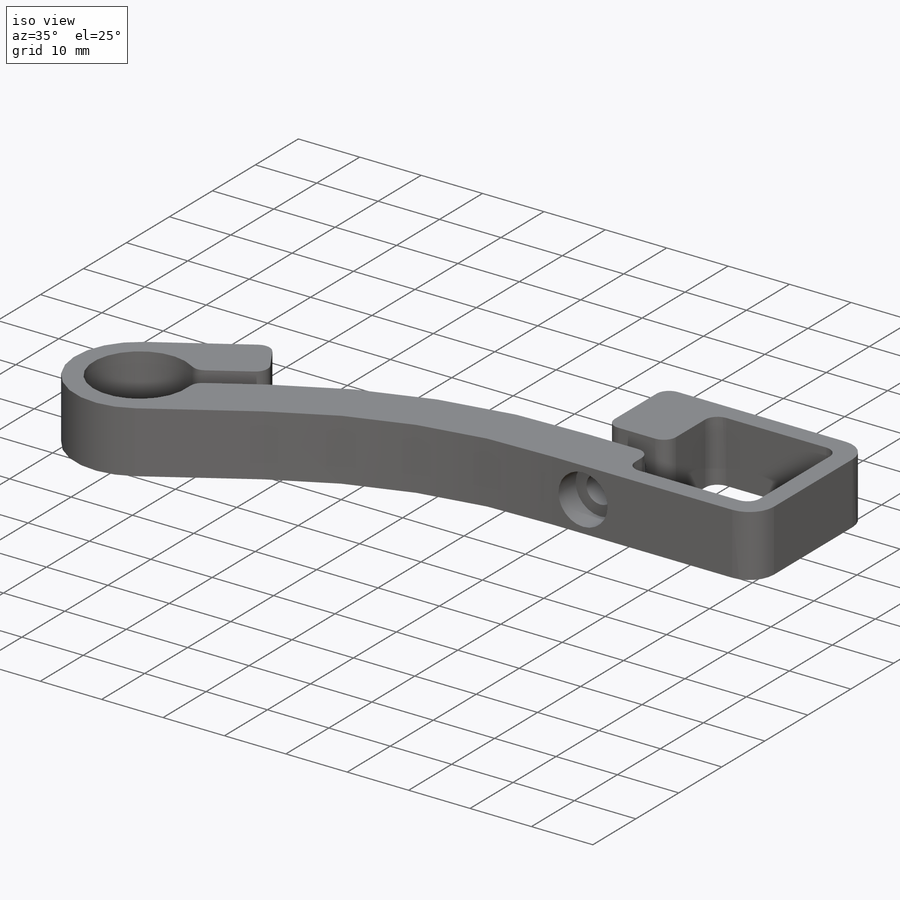
[diagram: iso view]
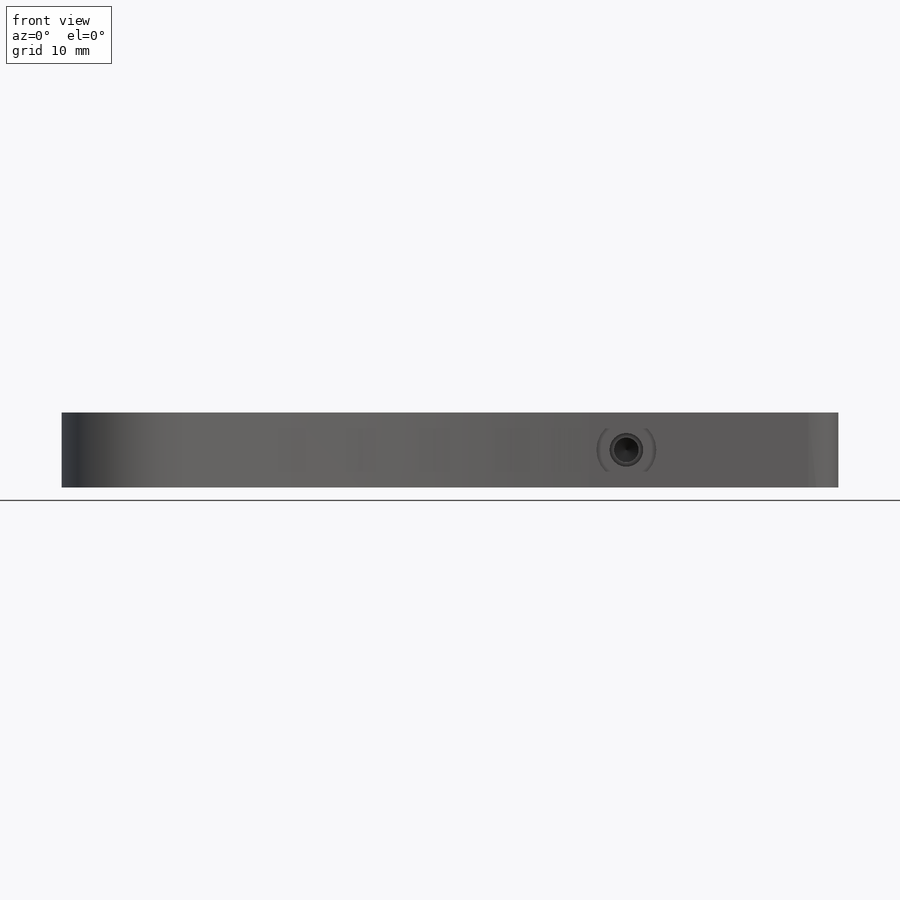
[diagram: front view]
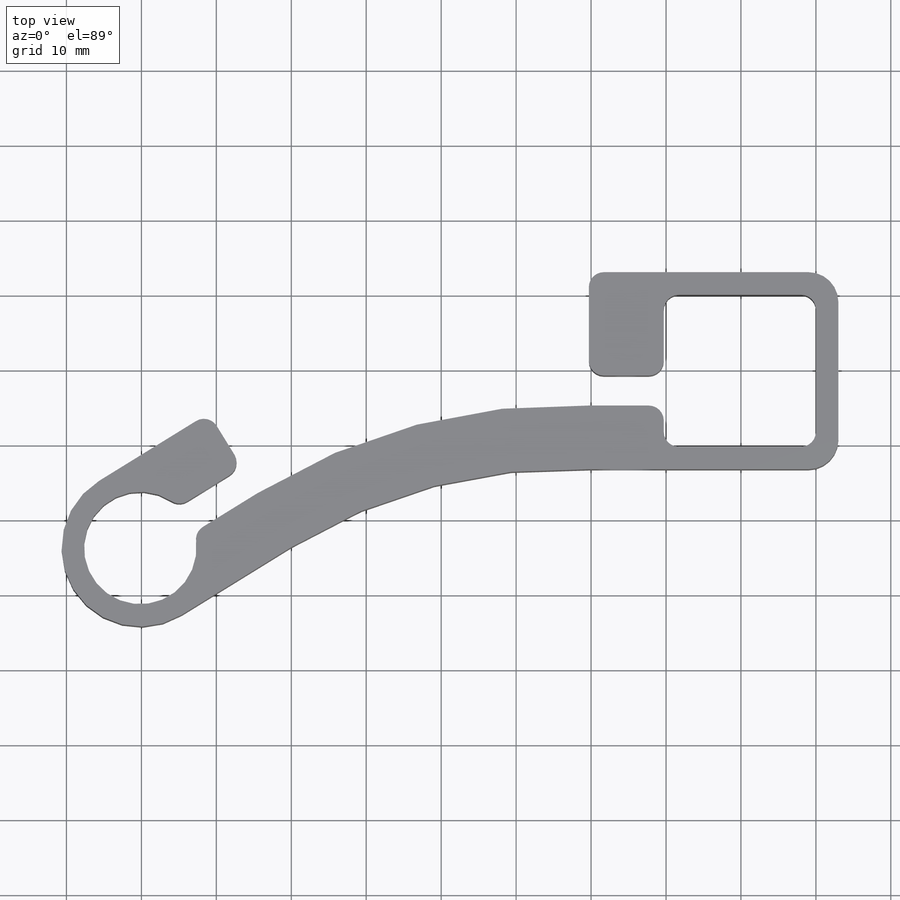
[diagram: top view]
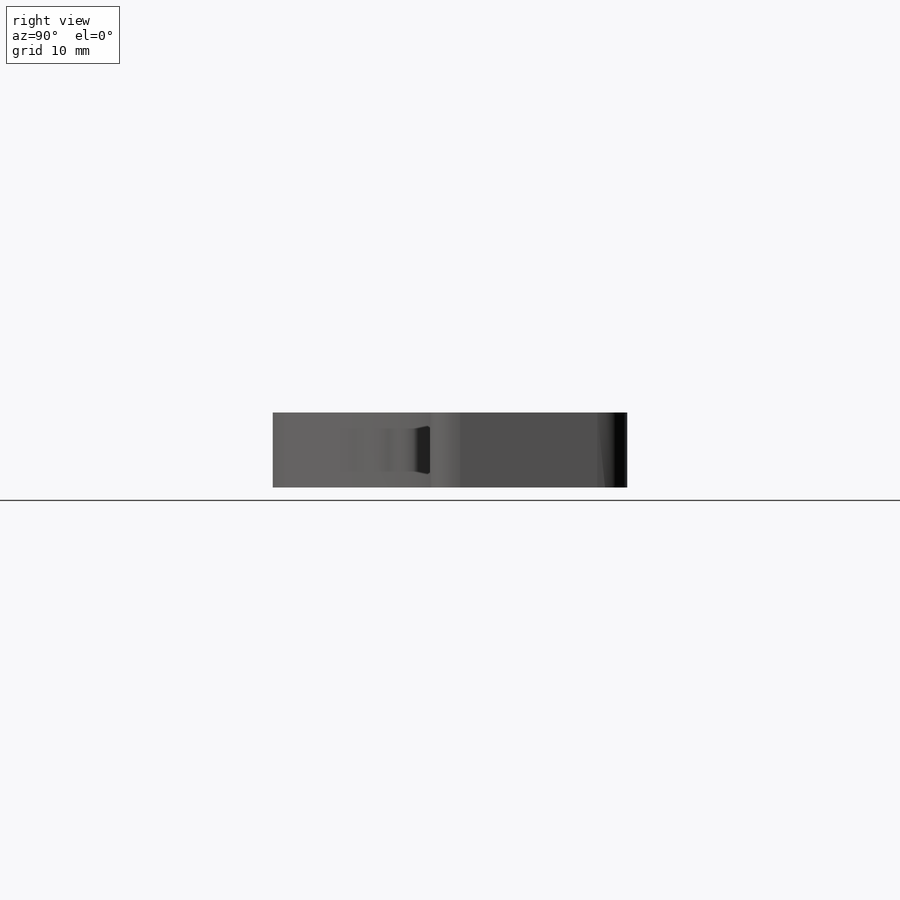
[diagram: right view]
SOLIDWORKS PART (.sldprt)
format: sldprt  version: not decoded by parser v0  size: 837,120 bytes
history: native  units: mm
features: sketch x12, hole x4, plane x3, thread x2, fillet x2, material x1, extrude x1 (+8 scaffold rows collapsed)
feature tree (33):
  scaffold x8  (default folders/planes/origin — collapsed)
  material  "Сплав 2024"
  plane  "Спереди"
  plane  "Сверху"
  plane  "Справа"
  sketch  "Эскиз1"  dims[c1.D4=15.0mm c1.D6=~29.870886mm c1.D15=~78.210078mm c1.D1=~15.297326mm c1.D2=~15.426457mm c2.D1=20.3mm c2.D2=20.3mm c2.D4=~17.871283mm c2.D6=80.0mm c2.D7=8.5mm c2.D8=8.5mm c2.D9=10.0mm c2.D10=10.0mm c2.D11=10.0mm c2.D12=8.5mm c2.D13=3.0mm c2.D14=4.0mm c2.D15=70.0mm c2.D3=3.0mm c2.D5=3.0mm c3.D7=8.0mm]
  extrude  "Бобышка-Вытянуть2"  Depth=10mm
  sketch  "Эскиз3"  dims[D1=5.0mm]
  sketch  "Эскиз2"  dims[D1=5.0mm]
  hole  "Отверстие обработанное метчиком M4x0.72"  [1 undecoded]
  sketch  "Эскиз5"
  sketch  "Эскиз4"  dims[hole-wizard template sketch: 47 standard entries collapsed; hole parameters kept: c15.Глубина сверла=8.6mm c15.D3=~14.816244mm c15.Угол заточки сверла=118.0deg]
  thread  "Отверстие резьбы2"  Diameter=8mm  [1 undecoded]
  hole  "Отверстие обработанное метчиком M4x0.71"  [1 undecoded]
  sketch  "Эскиз7"
  sketch  "Эскиз6"  dims[hole-wizard template sketch: 47 standard entries collapsed; hole parameters kept: c15.Глубина сверла=7.5mm c15.D3=~14.816244mm c15.Угол заточки сверла=118.0deg]
  thread  "Отверстие резьбы1"  Diameter=5mm  [1 undecoded]
  hole  "Цековка для винта с внутренним шестигранником M41"  [1 undecoded]
  sketch  "Трехмерный эскиз1"
  sketch  "Эскиз8"  dims[hole-wizard template sketch: 42 standard entries collapsed; hole parameters kept: c12.Глубина сквозного отверстия=8.5mm c12.Диаметр цековки=8.0mm c12.Глубина цековки=4.0mm]
  hole  "Отверстие с зазором M41"  [1 undecoded]
  sketch  "Эскиз10"
  sketch  "Эскиз9"  dims[hole-wizard template sketch: 47 standard entries collapsed; hole parameters kept: c15.Глубина отверстия=8.499mm c15.D3=~14.816244mm c15.Угол заточки сверла=118.0deg]
  fillet  "Скругление4"  Radius=4mm
  fillet  "Скругление3"  Radius=2mm
  sketch  "Эскиз11"
decode coverage: 12 of 21 modeling features carry decoded parameters
note: ~ marks probable driven/reference dimensions
note: 6 parameter values undecoded
summary: no parameter record found for 4 features
note: suppression state not decoded; provenance and decode notes live in map.json
